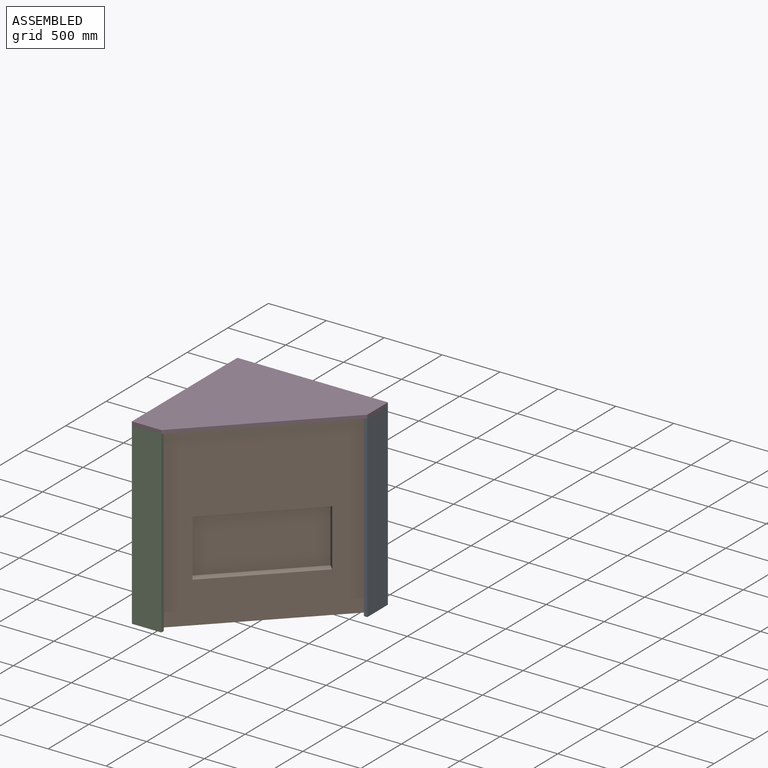
[diagram: assembled view]
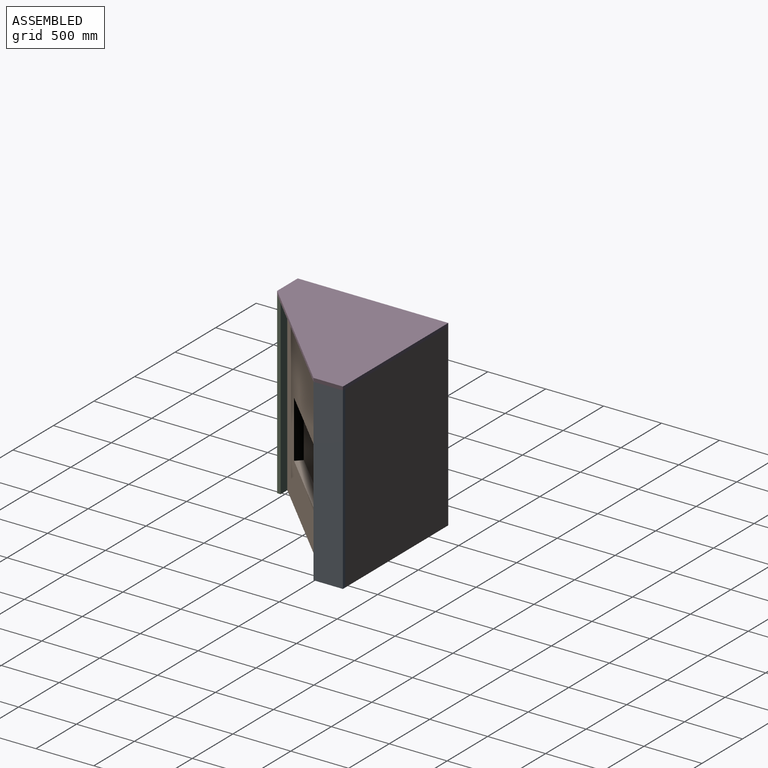
[diagram: assembled view, second angle]
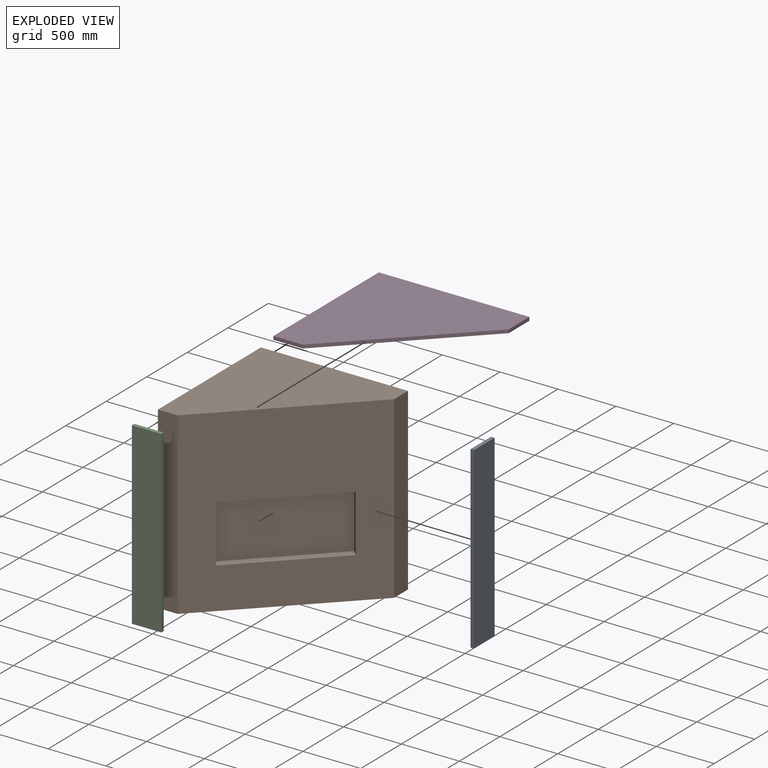
[diagram: exploded view]
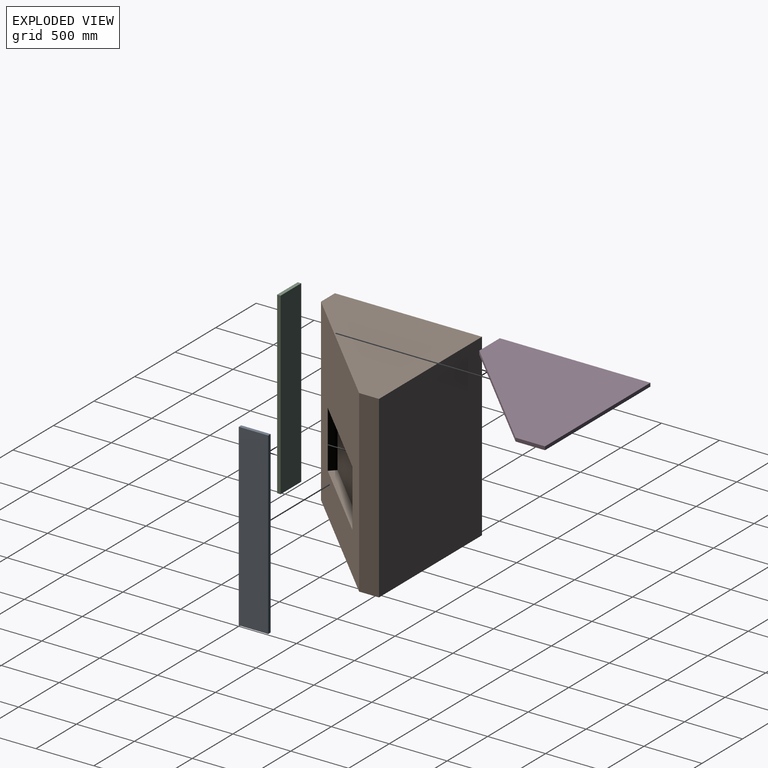
[diagram: exploded view, second angle]
ASSEMBLY  parts=4 mates=9
PART A: 6 faces, bbox 254x30x1549.4 mm
  f0: plane 1549.4x30mm, normal (1,0,0), area 46482mm2, adj f1,f3,f4,f5
  f1: plane 254x30mm, normal (0,0,1), area 7620mm2, adj f0,f2,f4,f5
  f2: plane 1549.4x30mm, normal (-1,0,0), area 46482mm2, adj f1,f3,f4,f5
  f3: plane 254x30mm, normal (0,0,-1), area 7620mm2, adj f0,f2,f4,f5
  f4: plane 1549.4x254mm, normal (0,-1,0), area 393547.6mm2, adj f0,f1,f2,f3
  f5: plane 1549.4x254mm, normal (0,1,0), area 393547.6mm2, adj f0,f1,f2,f3
PART B: 12 faces, bbox 1270x1270x1549.4 mm
  f0: plane 1549.4x171.45mm, normal (1,0,0), area 265644.6mm2, adj f1,f4,f5,f6
  f1: plane 1549.4x1270mm, normal (0,1,0), area 1967738mm2, adj f0,f2,f5,f6
  f2: plane 1549.4x1270mm, normal (-1,0,0), area 1967738mm2, adj f1,f3,f5,f6
  f3: plane 1549.4x171.45mm, normal (0,-1,0), area 265644.6mm2, adj f2,f4,f5,f6
  f4: plane 1549.4x1098.55mm, normal (0.71,-0.71,0), area 1913374.5mm2, adj f0,f3,f5,f6,f7,f8,f9,f10
  f5: plane 1270x1270mm, normal (0,0,1), area 1009493.9mm2, adj f0,f1,f2,f3,f4
  f6: plane 1270x1270mm, normal (0,0,-1), area 1009493.9mm2, adj f0,f1,f2,f3,f4
  f7: plane 492.13x49.39mm, normal (-0.71,-0.71,0), area 34374.9mm2, adj f4,f8,f10,f11
  f8: plane 758.83x758.83mm, normal (0,0,-1), area 70080.5mm2, adj f4,f7,f9,f11
  f9: plane 492.13x49.39mm, normal (0.71,0.71,0), area 34374.9mm2, adj f4,f8,f10,f11
  f10: plane 758.83x758.83mm, normal (0,0,1), area 70080.5mm2, adj f4,f7,f9,f11
  f11: plane 709.44x709.44mm, normal (0.71,-0.71,0), area 493749mm2, adj f7,f8,f9,f10
PART C: same geometry as A
PART D: 7 faces, bbox 1300x1300x30 mm
  f0: plane 1300x30mm, normal (0,1,0), area 39000mm2, adj f1,f4,f5,f6
  f1: plane 1300x30mm, normal (-1,0,0), area 39000mm2, adj f0,f2,f5,f6
  f2: plane 254x30mm, normal (0,-1,0), area 7620mm2, adj f1,f3,f5,f6
  f3: plane 1046x1046mm, normal (0.71,-0.71,0), area 44378mm2, adj f2,f4,f5,f6
  f4: plane 254x30mm, normal (1,0,0), area 7620mm2, adj f0,f3,f5,f6
  f5: plane 1300x1300mm, normal (0,0,1), area 1142942mm2, adj f0,f1,f2,f3,f4
  f6: plane 1300x1300mm, normal (0,0,-1), area 1142942mm2, adj f0,f1,f2,f3,f4
PLACE A rot(axis=(-0.71,-0.71,0),180deg) t=(629.75,663.57,1052.31)mm
PLACE B t=(-35.25,155.57,277.61)mm fixed
PLACE C t=(-543.25,-479.43,1052.31)mm
PLACE D t=(-35.25,155.57,1827.01)mm
MATE planar B.f1 <-> D.f0  axis (0,1,0) through (-35.25,790.57,1052.31)mm
MATE planar B.f0 <-> A.f4  axis (1,0,0) through (599.75,704.84,1052.31)mm
MATE planar C.f3 <-> B.f6  axis (0,0,-1) through (-543.25,-494.43,277.61)mm
MATE planar C.f2 <-> B.f2  axis (-1,0,0) through (-670.25,-494.43,1052.31)mm
MATE planar B.f1 <-> A.f0  axis (0,1,0) through (-35.25,790.57,1052.31)mm
MATE planar D.f1 <-> B.f2  axis (-1,0,0) through (-670.25,140.57,1842.01)mm
MATE planar C.f5 <-> B.f3  axis (0,1,0) through (-543.25,-479.43,1052.31)mm
MATE planar D.f6 <-> B.f5  axis (0,0,-1) through (-670.25,790.57,1827.01)mm
MATE planar A.f1 <-> B.f6  axis (0,0,-1) through (614.75,663.57,277.61)mm
